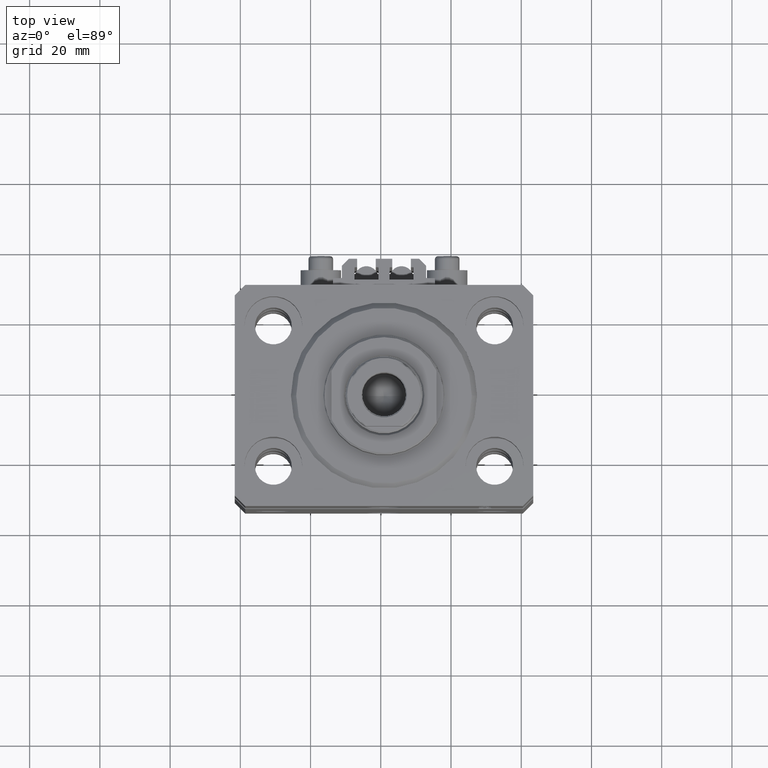
[diagram: clean part render]
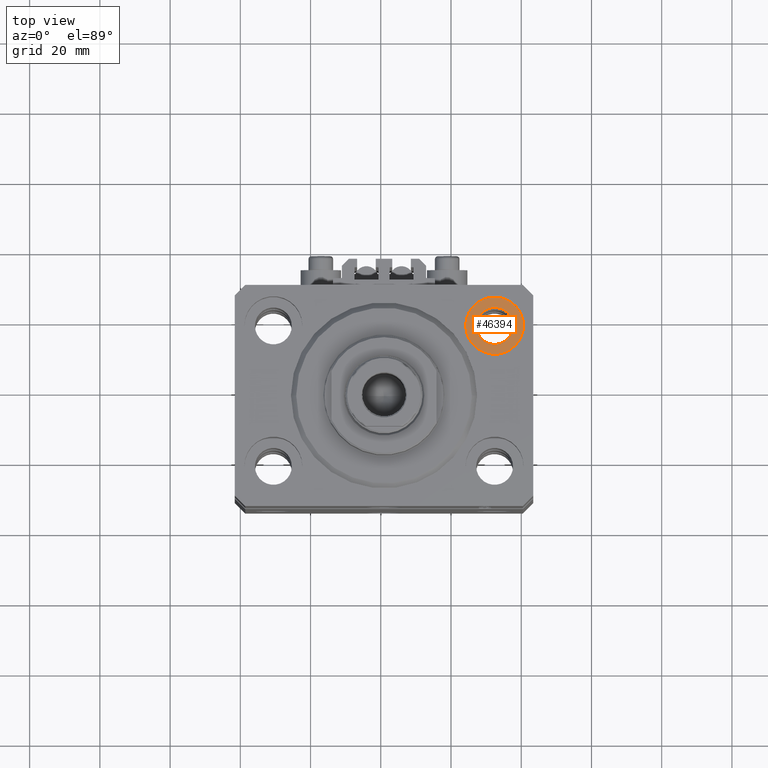
[diagram: same view with one face highlighted and labeled with its STEP entity id]
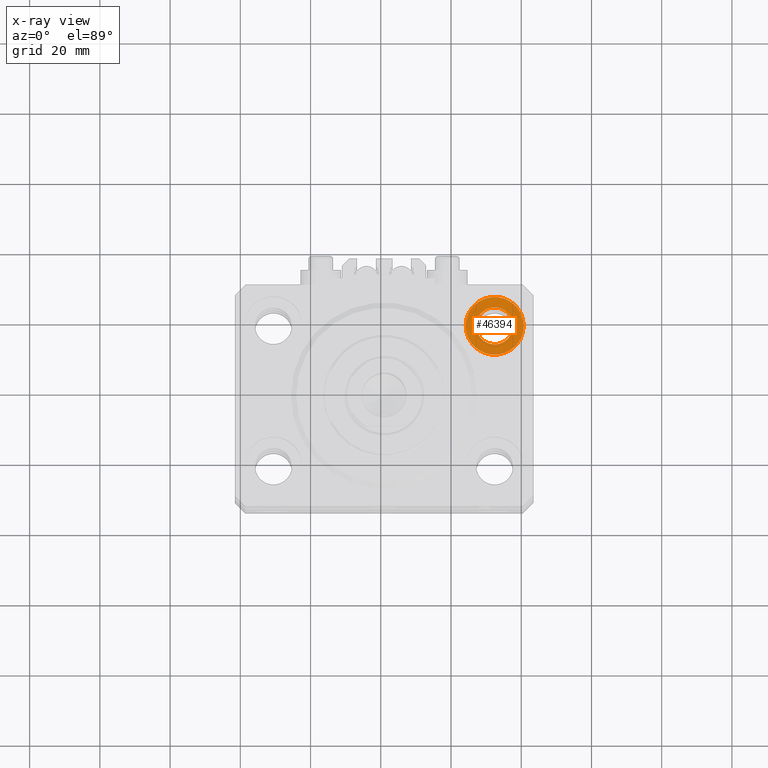
[diagram: x-ray of the same camera — body ghosted, the highlighted face saturated]
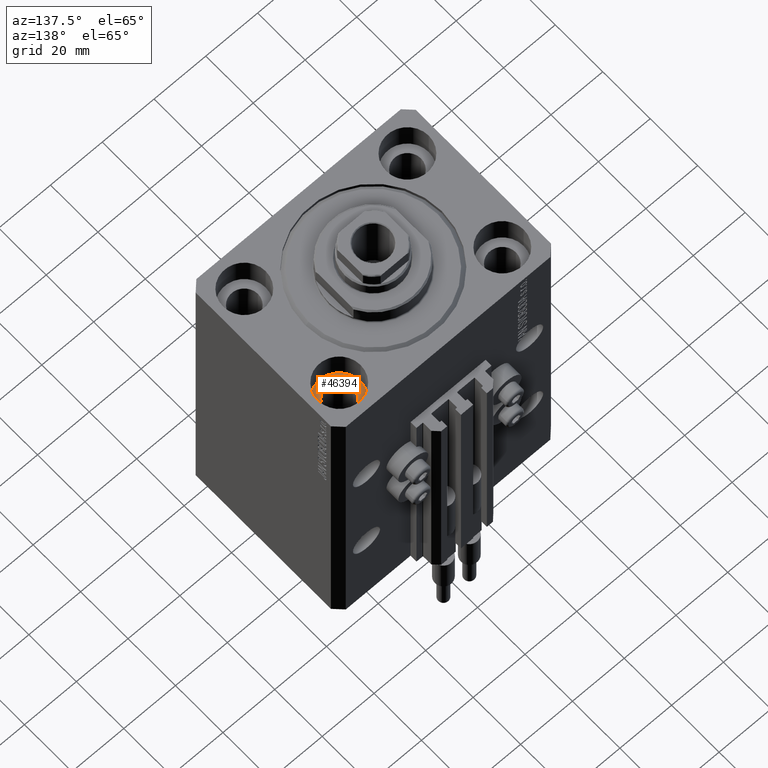
[diagram: same view with one face highlighted and labeled with its STEP entity id]
A machine part, top view. The second image highlights one B-rep face of the part: STEP entity #46394.
The next image is the same camera in x-ray: the body ghosted, the highlighted face saturated — about 0% of this face is hidden behind the body in this view.
A second angle (auxiliary view) of the same face is appended — the face is thin or edge-on in the first view.
In plain terms, the highlighted planar face has unit normal (0, 0, 1).
Its self-contained STEP definition (entity closure, byte-faithful):
#2196 = CARTESIAN_POINT ( 'NONE',  ( 36.75000000000000000, 20.00000000000001066, -11.00000000000000000 ) ) ;
#3434 = VERTEX_POINT ( 'NONE', #30286 ) ;
#4064 = DIRECTION ( 'NONE',  ( 0.000000000000000000, 0.000000000000000000, 1.000000000000000000 ) ) ;
#4682 = AXIS2_PLACEMENT_3D ( 'NONE', #10796, #41226, #29831 ) ;
#9503 = EDGE_CURVE ( 'NONE', #20846, #3434, #47354, .T. ) ;
#9697 = ORIENTED_EDGE ( 'NONE', *, *, #39914, .F. ) ;
#9911 = CARTESIAN_POINT ( 'NONE',  ( 31.50000000000000000, 20.00000000000001066, -11.00000000000000000 ) ) ;
#10614 = CARTESIAN_POINT ( 'NONE',  ( 31.50000000000000000, 20.00000000000001066, -11.00000000000000000 ) ) ;
#10796 = CARTESIAN_POINT ( 'NONE',  ( 31.50000000000000000, 20.00000000000001066, -11.00000000000000000 ) ) ;
#10931 = ORIENTED_EDGE ( 'NONE', *, *, #31449, .T. ) ;
#11722 = CARTESIAN_POINT ( 'NONE',  ( 31.50000000000000000, 20.00000000000001066, -11.00000000000000000 ) ) ;
#11912 = AXIS2_PLACEMENT_3D ( 'NONE', #11722, #4064, #30034 ) ;
#12196 = FACE_BOUND ( 'NONE', #17896, .T. ) ;
#13076 = AXIS2_PLACEMENT_3D ( 'NONE', #39375, #16384, #24784 ) ;
#13426 = CARTESIAN_POINT ( 'NONE',  ( 23.25000000000000355, 20.00000000000001066, -11.00000000000000000 ) ) ;
#14516 = VERTEX_POINT ( 'NONE', #42791 ) ;
#16262 = CIRCLE ( 'NONE', #13076, 8.249999999999992895 ) ;
#16384 = DIRECTION ( 'NONE',  ( 0.000000000000000000, 0.000000000000000000, 1.000000000000000000 ) ) ;
#16942 = EDGE_LOOP ( 'NONE', ( #10931, #44446 ) ) ;
#17896 = EDGE_LOOP ( 'NONE', ( #22592, #9697 ) ) ;
#18565 = DIRECTION ( 'NONE',  ( 0.000000000000000000, 0.000000000000000000, 1.000000000000000000 ) ) ;
#19151 = PLANE ( 'NONE',  #11912 ) ;
#20171 = AXIS2_PLACEMENT_3D ( 'NONE', #10614, #30136, #44503 ) ;
#20846 = VERTEX_POINT ( 'NONE', #13426 ) ;
#22592 = ORIENTED_EDGE ( 'NONE', *, *, #30980, .F. ) ;
#24784 = DIRECTION ( 'NONE',  ( 1.000000000000000000, 0.000000000000000000, 0.000000000000000000 ) ) ;
#29831 = DIRECTION ( 'NONE',  ( 1.000000000000000000, 0.000000000000000000, 0.000000000000000000 ) ) ;
#30034 = DIRECTION ( 'NONE',  ( 1.000000000000000000, 0.000000000000000000, -0.000000000000000000 ) ) ;
#30136 = DIRECTION ( 'NONE',  ( 0.000000000000000000, 0.000000000000000000, 1.000000000000000000 ) ) ;
#30286 = CARTESIAN_POINT ( 'NONE',  ( 39.74999999999999289, 20.00000000000001066, -11.00000000000000000 ) ) ;
#30639 = AXIS2_PLACEMENT_3D ( 'NONE', #9911, #18565, #41568 ) ;
#30980 = EDGE_CURVE ( 'NONE', #37449, #14516, #37576, .T. ) ;
#31449 = EDGE_CURVE ( 'NONE', #3434, #20846, #16262, .T. ) ;
#35362 = CIRCLE ( 'NONE', #30639, 5.249999999999997335 ) ;
#37449 = VERTEX_POINT ( 'NONE', #2196 ) ;
#37576 = CIRCLE ( 'NONE', #20171, 5.249999999999997335 ) ;
#39375 = CARTESIAN_POINT ( 'NONE',  ( 31.50000000000000000, 20.00000000000001066, -11.00000000000000000 ) ) ;
#39914 = EDGE_CURVE ( 'NONE', #14516, #37449, #35362, .T. ) ;
#41187 = FACE_OUTER_BOUND ( 'NONE', #16942, .T. ) ;
#41226 = DIRECTION ( 'NONE',  ( 0.000000000000000000, 0.000000000000000000, 1.000000000000000000 ) ) ;
#41568 = DIRECTION ( 'NONE',  ( 1.000000000000000000, 0.000000000000000000, 0.000000000000000000 ) ) ;
#42791 = CARTESIAN_POINT ( 'NONE',  ( 26.25000000000000355, 20.00000000000001066, -11.00000000000000000 ) ) ;
#44446 = ORIENTED_EDGE ( 'NONE', *, *, #9503, .T. ) ;
#44503 = DIRECTION ( 'NONE',  ( 1.000000000000000000, 0.000000000000000000, 0.000000000000000000 ) ) ;
#46394 = ADVANCED_FACE ( 'NONE', ( #12196, #41187 ), #19151, .T. ) ;
#47354 = CIRCLE ( 'NONE', #4682, 8.249999999999992895 ) ;